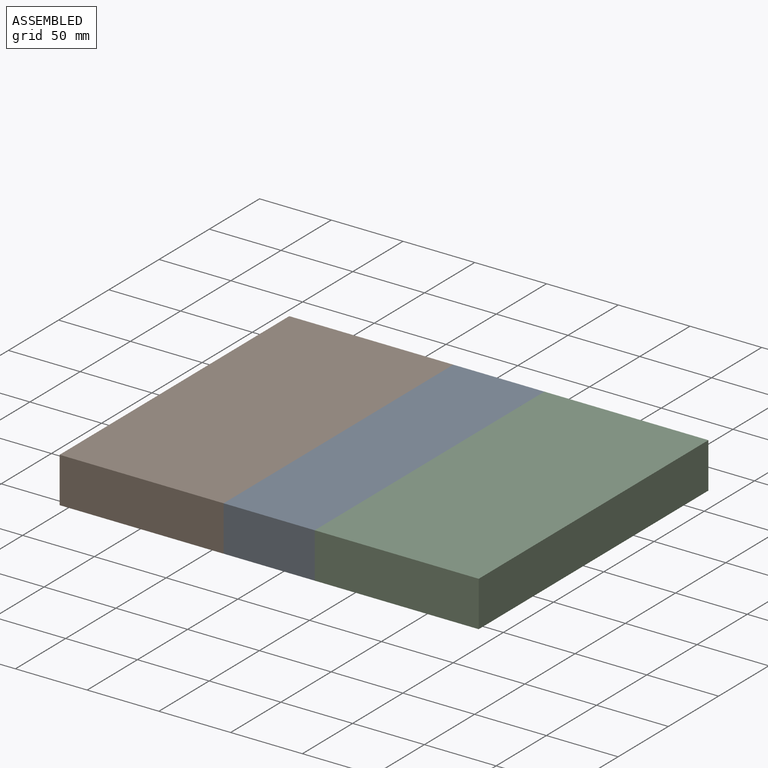
[diagram: assembled view]
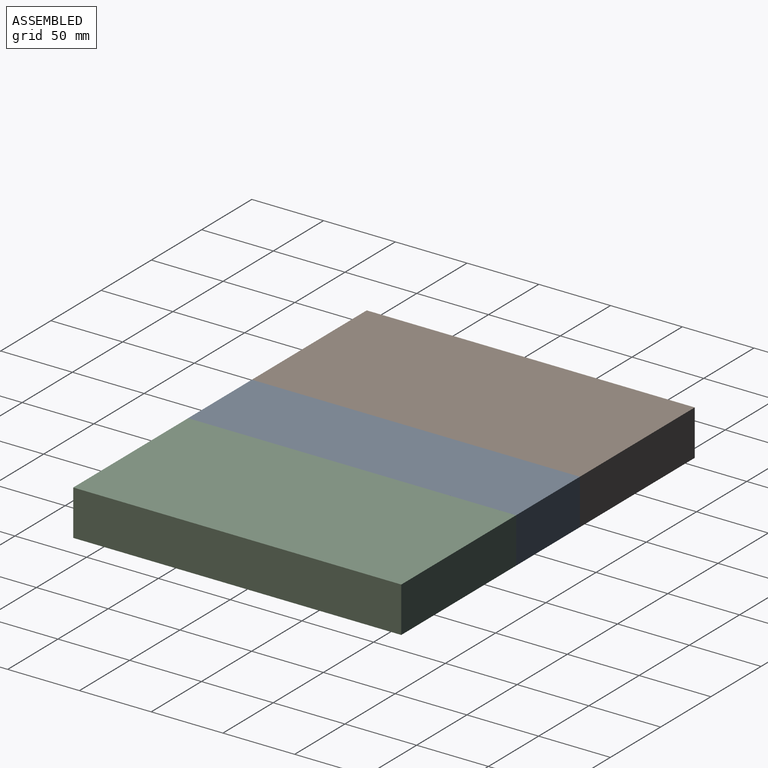
[diagram: assembled view, second angle]
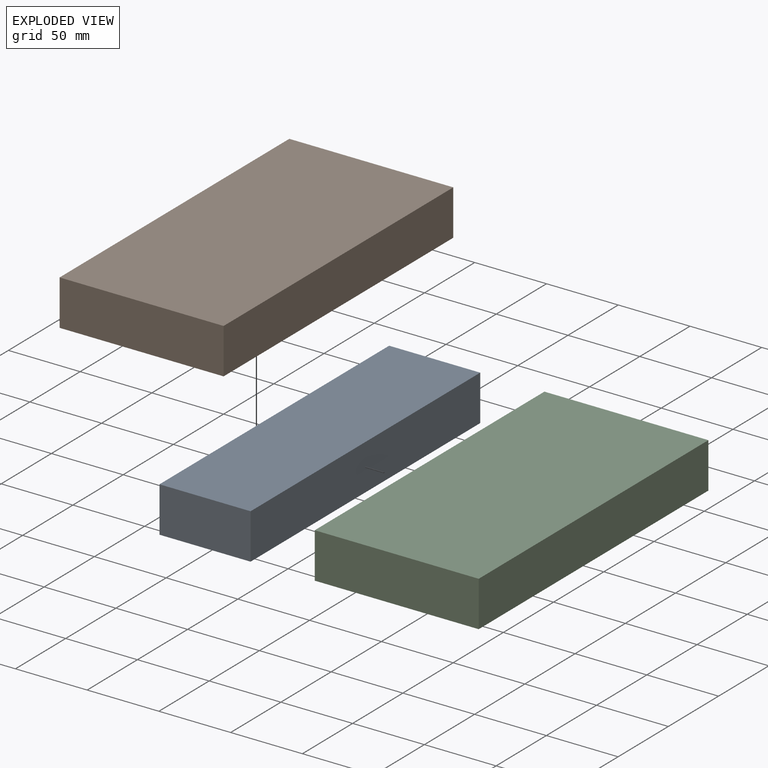
[diagram: exploded view]
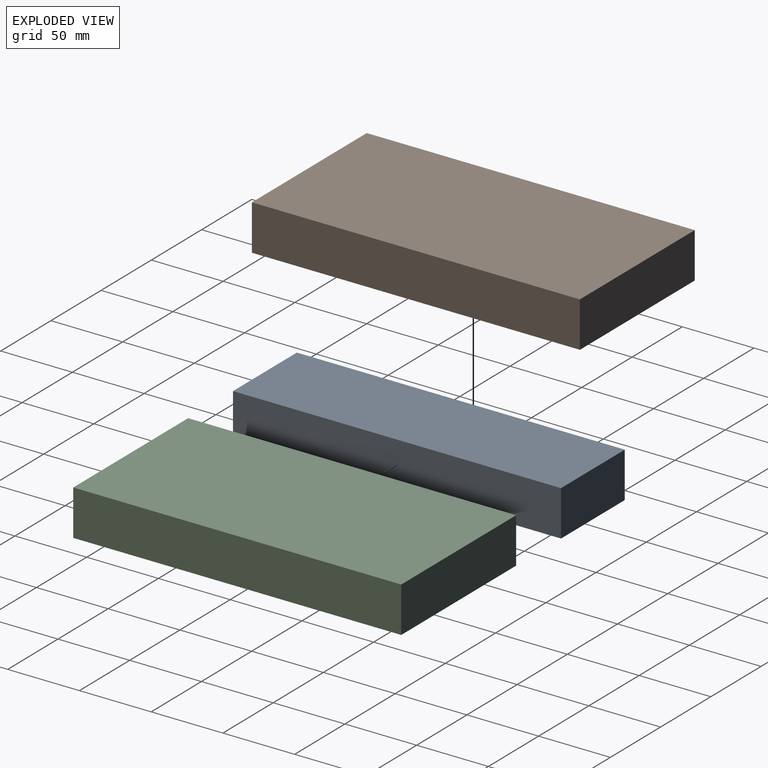
[diagram: exploded view, second angle]
ASSEMBLY  parts=3 mates=2
PART A: 6 faces, bbox 228.6x31.8x63.5 mm
  f0: plane 228.6x63.5mm, normal (0,-1,0), area 14516.1mm2, adj f1,f3,f4,f5
  f1: plane 63.5x31.75mm, normal (1,0,0), area 2016.1mm2, adj f0,f2,f3,f5
  f2: plane 228.6x63.5mm, normal (0,1,0), area 14516.1mm2, adj f1,f3,f4,f5
  f3: plane 228.6x31.75mm, normal (0,0,-1), area 7258.1mm2, adj f0,f1,f2,f4
  f4: plane 63.5x31.75mm, normal (-1,0,0), area 2016.1mm2, adj f0,f2,f3,f5
  f5: plane 228.6x31.75mm, normal (0,0,1), area 7258.1mm2, adj f0,f1,f2,f4
PART B: 6 faces, bbox 114.3x31.8x228.6 mm
  f0: plane 114.3x31.75mm, normal (0,0,-1), area 3629mm2, adj f1,f2,f3,f4
  f1: plane 228.6x31.75mm, normal (-1,0,0), area 7258.1mm2, adj f0,f3,f4,f5
  f2: plane 228.6x31.75mm, normal (1,0,0), area 7258.1mm2, adj f0,f3,f4,f5
  f3: plane 228.6x114.3mm, normal (0,1,0), area 26129mm2, adj f0,f1,f2,f5
  f4: plane 228.6x114.3mm, normal (0,-1,0), area 26129mm2, adj f0,f1,f2,f5
  f5: plane 114.3x31.75mm, normal (0,0,1), area 3629mm2, adj f1,f2,f3,f4
PART C: same geometry as B
PLACE A rot(axis=(-0.58,-0.58,0.58),120deg) t=(257.18,0,114.3)mm
PLACE B rot(axis=(0,-0.71,0.71),180deg) t=(-34.92,114.3,114.3)mm
PLACE C rot(axis=(-1,0,0),90deg) t=(28.57,-114.3,114.3)mm
MATE fastened A.f0 <-> C.f4  axis (0,0,1) through (28.58,0,0)mm
MATE fastened B.f4 <-> A.f0  axis (0,0,1) through (-34.92,0,0)mm
